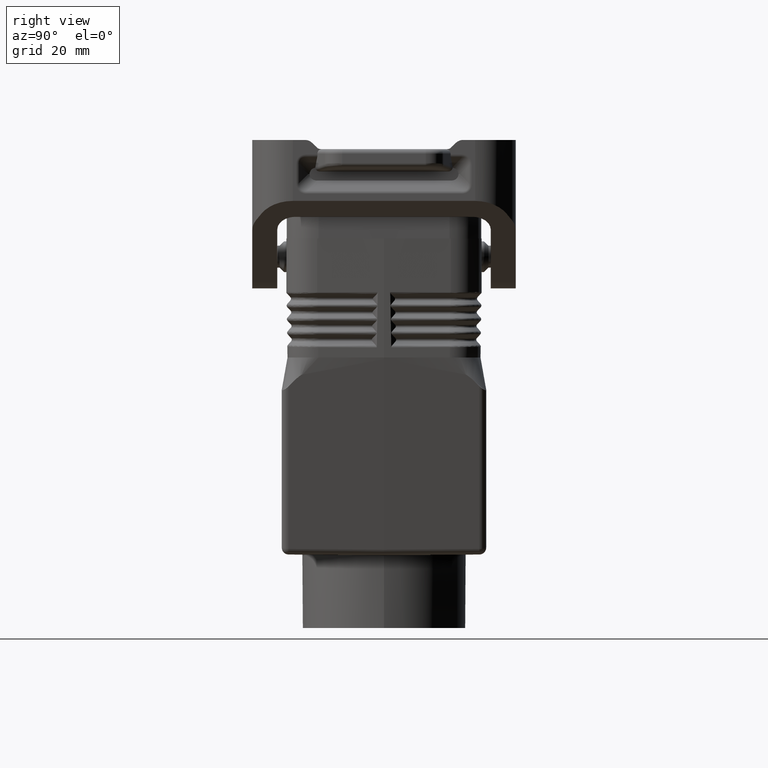
[diagram: clean part render]
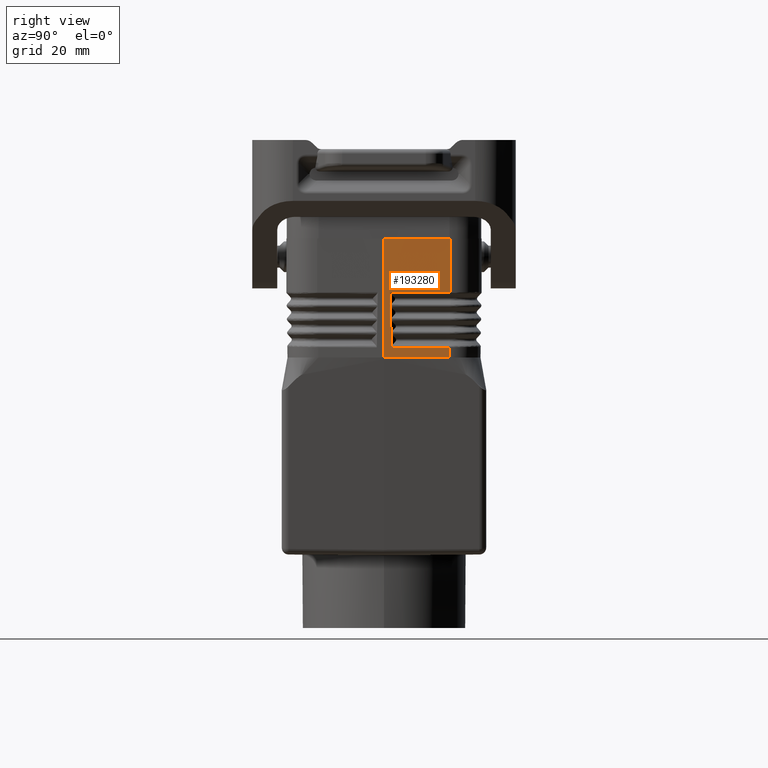
[diagram: same view with one face highlighted and labeled with its STEP entity id]
A machine part, right view. The second image highlights one B-rep face of the part: STEP entity #193280.
In plain terms, the highlighted planar face has unit normal (-0.9995, -0.0262, 0.0175).
Its self-contained STEP definition (entity closure, byte-faithful):
#89070=CARTESIAN_POINT('',(94.2445425854086,-8.84332853446274,
12.0642152069529));
#89080=VERTEX_POINT('',#89070);
#89110=CARTESIAN_POINT('',(80.9368443902668,-8.49485381954199,
12.0642366098111));
#89120=CARTESIAN_POINT('',(80.9843686813937,-8.49609841147419,
12.064229475525));
#89130=CARTESIAN_POINT('',(81.0330311003912,-8.49737293090566,
12.0642152069529));
#89140=CARTESIAN_POINT('',(83.2426031165131,-8.55523261042129,
12.0642152069529));
#89150=CARTESIAN_POINT('',(85.4057889694978,-8.61187762550713,
12.0642152069529));
#89160=CARTESIAN_POINT('',(89.9607736309537,-8.73115409660086,
12.0642152069529));
#89170=CARTESIAN_POINT('',(92.352572439425,-8.79378555260877,
12.0642152069529));
#89180=CARTESIAN_POINT('',(94.7443712478963,-8.85641700861667,
12.0642152069529));
#89190=B_SPLINE_CURVE_WITH_KNOTS('',3,(#89110,#89120,#89130,#89140,
#89150,#89160,#89170,#89180),.UNSPECIFIED.,.F.,.F.,(4,2,2,4),(0.,
0.139206191897163,6.63098832245135,13.8088444198789),.UNSPECIFIED.);
#89200=CARTESIAN_POINT('',(80.9368443902668,-8.49485381954199,
12.0642366098111));
#89210=VERTEX_POINT('',#89200);
#89220=EDGE_CURVE('',#89210,#89080,#89190,.T.);
#165700=CARTESIAN_POINT('',(95.6200000000001,-8.62814830851868,
26.4503986860161));
#165710=VERTEX_POINT('',#165700);
#175260=CARTESIAN_POINT('',(95.62,-9.08563473790164,0.249999999999986));
#175270=VERTEX_POINT('',#175260);
#175320=CARTESIAN_POINT('',(95.62,-8.4923338207296,34.2285391921959));
#175330=DIRECTION('',(0.,-0.0174583871680154,-0.999847590744455));
#175340=VECTOR('',#175330,1.);
#175350=LINE('',#175320,#175340);
#175360=EDGE_CURVE('',#165710,#175270,#175350,.T.);
#186010=CARTESIAN_POINT('',(81.1900882135874,-8.24815460903573,
26.5725655310771));
#186020=DIRECTION('',(0.0174498847012771,0.0169989250785397,
0.999703224997342));
#186030=VECTOR('',#186020,1.);
#186040=LINE('',#186010,#186030);
#186050=CARTESIAN_POINT('',(80.936789269977,-8.494907515351,
12.0610787705255));
#186060=VERTEX_POINT('',#186050);
#186070=EDGE_CURVE('',#186060,#89210,#186040,.T.);
#192490=CARTESIAN_POINT('',(95.62,-9.09,-2.1316282072803E-14));
#192500=DIRECTION('',(0.0261729614318547,0.999505072323015,
-0.017452406437283));
#192510=DIRECTION('',(-0.999657324975557,0.0261769483078728,
1.39526252933079E-17));
#192520=AXIS2_PLACEMENT_3D('',#192490,#192500,#192510);
#192530=PLANE('',#192520);
#192540=CARTESIAN_POINT('',(87.6333287776874,-8.87649639167528,
0.249999999999993));
#192550=DIRECTION('',(0.999657324975557,-0.0261769483078729,
-2.22598924862263E-15));
#192560=VECTOR('',#192550,1.);
#192570=LINE('',#192540,#192560);
#192580=CARTESIAN_POINT('',(80.936789269977,-8.70114133334143,
0.250000000000007));
#192590=VERTEX_POINT('',#192580);
#192600=CARTESIAN_POINT('',(91.9678567004392,-8.98999999989991,
0.249999999999936));
#192610=VERTEX_POINT('',#192600);
#192620=EDGE_CURVE('',#192590,#192610,#192570,.T.);
#192630=ORIENTED_EDGE('',*,*,#192620,.T.);
#192640=CARTESIAN_POINT('',(80.936789269977,-8.2415217427648,
26.5725655310771));
#192650=DIRECTION('',(5.36762108996749E-18,-0.0174583871680154,
-0.999847590744455));
#192660=VECTOR('',#192650,1.);
#192670=LINE('',#192640,#192660);
#192680=EDGE_CURVE('',#186060,#192590,#192670,.T.);
#192690=ORIENTED_EDGE('',*,*,#192680,.T.);
#192700=ORIENTED_EDGE('',*,*,#186070,.F.);
#192710=ORIENTED_EDGE('',*,*,#89220,.F.);
#192720=CARTESIAN_POINT('',(93.847123465799,-8.44590941485317,
34.2285391921959));
#192730=DIRECTION('',(0.0179248150762535,-0.0179248150762532,
-0.999678649371369));
#192740=VECTOR('',#192730,1.);
#192750=LINE('',#192720,#192740);
#192760=CARTESIAN_POINT('',(94.0272744360311,-8.62606038508532,
24.1814018667346));
#192770=VERTEX_POINT('',#192760);
#192780=EDGE_CURVE('',#192770,#89080,#192750,.T.);
#192790=ORIENTED_EDGE('',*,*,#192780,.T.);
#192800=CARTESIAN_POINT('',(94.5271030985189,-8.63914885923925,
24.1814018667346));
#192810=CARTESIAN_POINT('',(92.230610508179,-8.57901308438439,
24.1814018667346));
#192820=CARTESIAN_POINT('',(89.9341179178391,-8.51887730952954,
24.1814018667346));
#192830=CARTESIAN_POINT('',(85.5171498851785,-8.40321493105268,
24.1814018667346));
#192840=CARTESIAN_POINT('',(83.3966744428577,-8.34768832743068,
24.1814018667346));
#192850=CARTESIAN_POINT('',(81.2633568153705,-8.29182543935513,
24.1814018667346));
#192860=CARTESIAN_POINT('',(81.2472364363688,-8.29140508810452,
24.1813001701158));
#192870=CARTESIAN_POINT('',(81.2327551180263,-8.29102588143818,
24.1813001701158));
#192880=B_SPLINE_CURVE_WITH_KNOTS('',3,(#192800,#192810,#192820,#192830,
#192840,#192850,#192860,#192870),.UNSPECIFIED.,.F.,.F.,(4,2,2,4),(
26.3012019669419,33.1930413992075,39.5566483753458,39.5951881374595),
.UNSPECIFIED.);
#192890=CARTESIAN_POINT('',(81.2327551180263,-8.29102588143818,
24.1813001701158));
#192900=VERTEX_POINT('',#192890);
#192910=EDGE_CURVE('',#192770,#192900,#192880,.T.);
#192920=ORIENTED_EDGE('',*,*,#192910,.F.);
#192930=CARTESIAN_POINT('',(81.148322542602,-8.2888409243948,
24.1798118428413));
#192940=CARTESIAN_POINT('',(81.1595749841645,-8.28913356876627,
24.1799270238259));
#192950=CARTESIAN_POINT('',(81.1708269917516,-8.28942561969843,
24.1800755404521));
#192960=CARTESIAN_POINT('',(81.1852733516765,-8.28979983624905,
24.1803088997122));
#192970=CARTESIAN_POINT('',(81.1884680183416,-8.28988254358945,
24.1803631891409));
#192980=CARTESIAN_POINT('',(81.1940881034637,-8.29002796058541,
24.1804634186463));
#192990=CARTESIAN_POINT('',(81.1965134866144,-8.29009068920819,
24.1805082195183));
#193000=CARTESIAN_POINT('',(81.2101959224144,-8.29044441103336,
24.1807696795106));
#193010=CARTESIAN_POINT('',(81.2214837261268,-8.29073562300396,
24.1810199263452));
#193020=CARTESIAN_POINT('',(81.2327551180263,-8.29102588143818,
24.1813001701158));
#193030=B_SPLINE_CURVE_WITH_KNOTS('',3,(#192930,#192940,#192950,#192960,
#192970,#192980,#192990,#193000,#193010,#193020),.UNSPECIFIED.,.F.,.F.,(
4,2,2,2,4),(0.,0.0347371837207218,0.0446000936093864,0.0520882009545947,
0.0868439050486627),.UNSPECIFIED.);
#193040=CARTESIAN_POINT('',(81.148322542602,-8.2888409243948,
24.1798118428413));
#193050=VERTEX_POINT('',#193040);
#193060=EDGE_CURVE('',#193050,#192900,#193030,.T.);
#193070=ORIENTED_EDGE('',*,*,#193060,.T.);
#193080=CARTESIAN_POINT('',(81.1879557833748,-8.2502319305791,
26.4503986860161));
#193090=VERTEX_POINT('',#193080);
#193100=EDGE_CURVE('',#193050,#193090,#186040,.T.);
#193110=ORIENTED_EDGE('',*,*,#193100,.F.);
#193120=CARTESIAN_POINT('',(81.1879557833748,-8.2502319305791,
26.4503986860161));
#193130=CARTESIAN_POINT('',(85.9986371889166,-8.37620405655895,
26.4503986860161));
#193140=CARTESIAN_POINT('',(90.8093185944583,-8.50217618253881,
26.4503986860161));
#193150=CARTESIAN_POINT('',(95.6200000000001,-8.62814830851868,
26.4503986860161));
#193160=B_SPLINE_CURVE_WITH_KNOTS('',3,(#193120,#193130,#193140,#193150)
,.UNSPECIFIED.,.F.,.F.,(4,4),(10.8454751284089,25.2824665414193),
.UNSPECIFIED.);
#193170=EDGE_CURVE('',#193090,#165710,#193160,.T.);
#193180=ORIENTED_EDGE('',*,*,#193170,.F.);
#193190=ORIENTED_EDGE('',*,*,#175360,.F.);
#193200=CARTESIAN_POINT('',(87.6333287776874,-8.87649639167528,
0.249999999999993));
#193210=DIRECTION('',(-0.999657324975557,0.0261769483078728,
5.20496316903187E-18));
#193220=VECTOR('',#193210,1.);
#193230=LINE('',#193200,#193220);
#193240=EDGE_CURVE('',#175270,#192610,#193230,.T.);
#193250=ORIENTED_EDGE('',*,*,#193240,.F.);
#193260=EDGE_LOOP('',(#193250,#193190,#193180,#193110,#193070,#192920,
#192790,#192710,#192700,#192690,#192630));
#193270=FACE_OUTER_BOUND('',#193260,.T.);
#193280=ADVANCED_FACE('',(#193270),#192530,.F.);